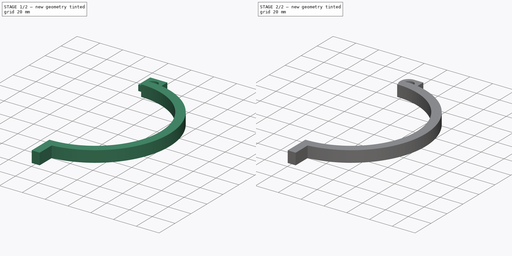
[diagram: build sequence overview — one tinted view per stage of 2, left to right]
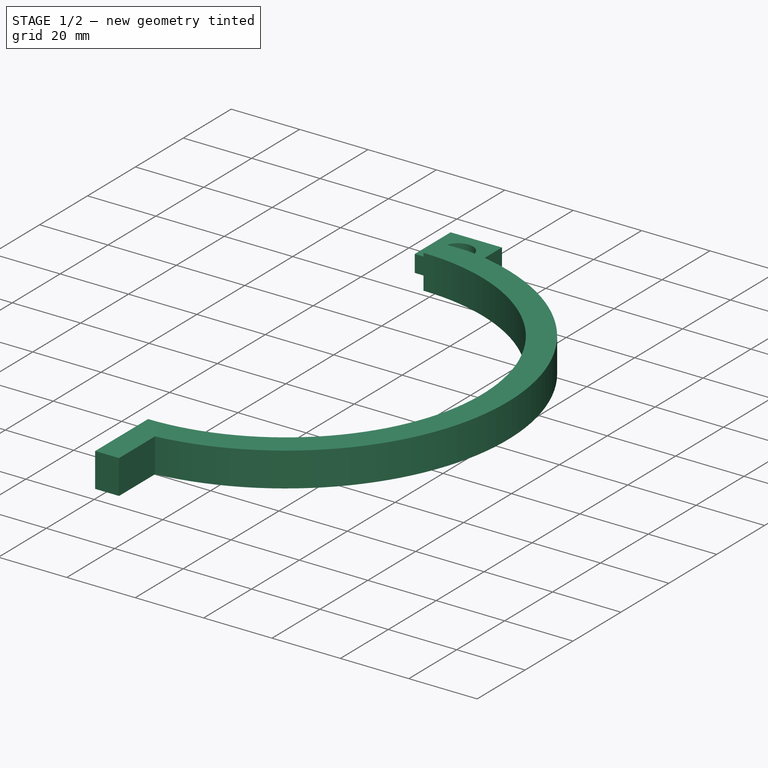
[diagram: stage 1 of 2 — iso view after this stage's code; geometry added in this stage tinted green]
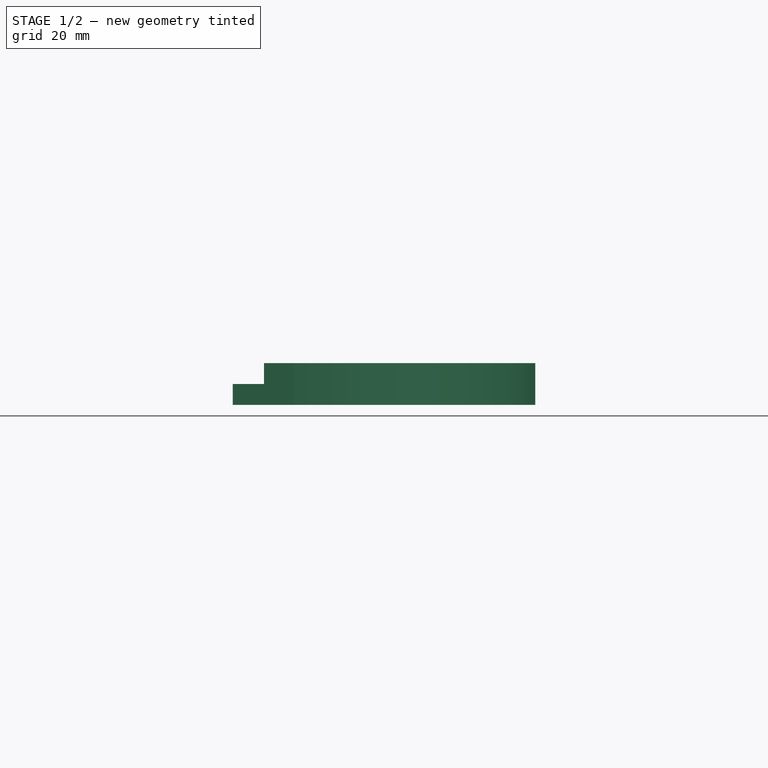
[diagram: stage 1 of 2 — front view after this stage's code; geometry added in this stage tinted green]
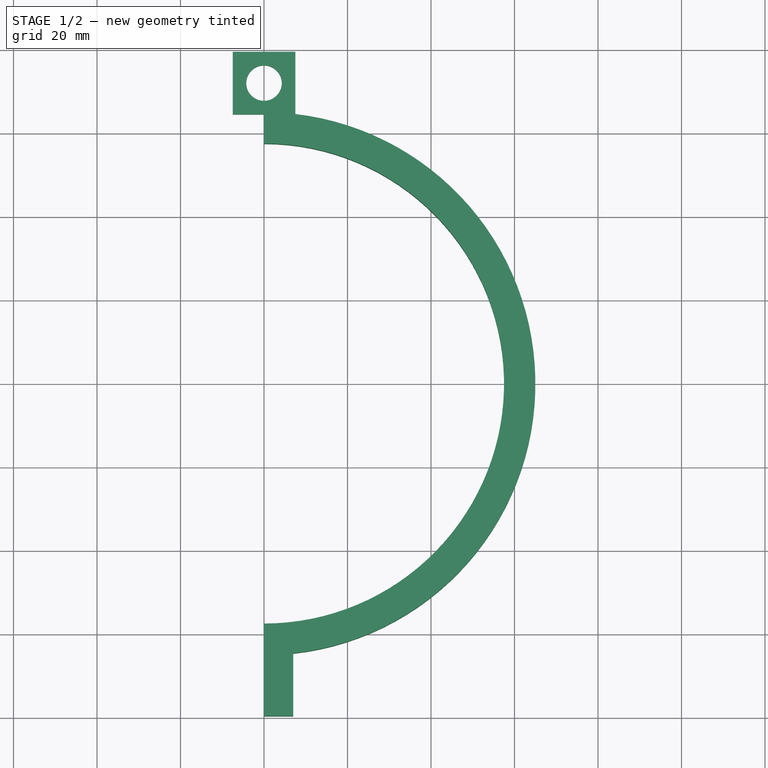
[diagram: stage 1 of 2 — top view after this stage's code; geometry added in this stage tinted green]
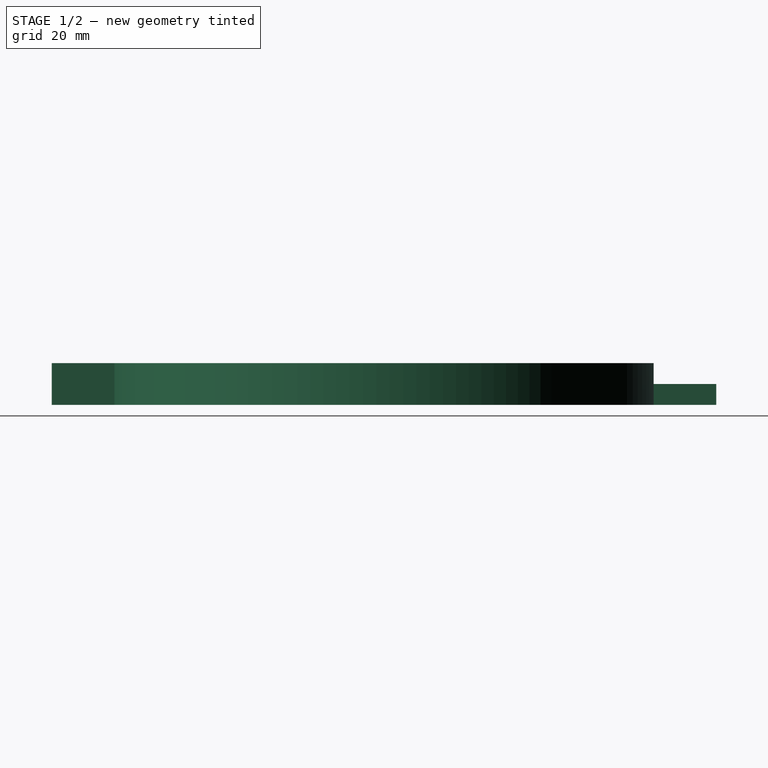
[diagram: stage 1 of 2 — right view after this stage's code; geometry added in this stage tinted green]
FCSTD DOCUMENT  (FreeCAD 1.0R39109 (Git))
Label: close_winds1.1
License: All rights reserved
LicenseURL: https://en.wikipedia.org/wiki/All_rights_reserved
objects: Sketcher::SketchObject×2, PartDesign::Pad×1, PartDesign::Pocket×1, PartDesign::Fillet×1, PartDesign::Body×1
note: 14 computed .brp shape members not serialized (recipe doc carries the construction recipe); baked Part::Feature solids carry a one-line shape summary decoded from their .brp

FEATURE [Sketcher::SketchObject] Sketch
  ArcFitTolerance = 1e-06
  AttachmentSupport = -> [XY_Plane]
  FullyConstrained = true
  MakeInternals = false
  MapMode = 5
  sketch-geometry (11):
    g0: ArcOfCircle CenterX=0 CenterY=0 CenterZ=0 NormalX=0 NormalY=0 NormalZ=1 AngleXU=0 Radius=57.5 StartAngle=4.71239 EndAngle=7.85398
    g1: ArcOfCircle CenterX=0 CenterY=0 CenterZ=0 NormalX=0 NormalY=0 NormalZ=1 AngleXU=0 Radius=65 StartAngle=4.82029 EndAngle=7.73834
    g2: LineSegment StartX=7.5 StartY=64.5659 StartZ=0 EndX=7.5 EndY=79.5659 EndZ=0
    g3: LineSegment StartX=7.5 StartY=79.5659 StartZ=0 EndX=-7.5 EndY=79.5659 EndZ=0
    g4: Circle CenterX=0 CenterY=72.0659 CenterZ=0 NormalX=0 NormalY=0 NormalZ=1 AngleXU=0 Radius=4.25
    g5: LineSegment StartX=-7.5 StartY=79.5659 StartZ=0 EndX=-7.5 EndY=64.5659 EndZ=0
    g6: LineSegment StartX=-7.5 StartY=64.5659 StartZ=0 EndX=0 EndY=64.5659 EndZ=0
    g7: LineSegment StartX=0 StartY=64.5659 StartZ=0 EndX=0 EndY=57.5 EndZ=0
    g8: LineSegment StartX=7 StartY=-64.622 StartZ=0 EndX=7 EndY=-79.622 EndZ=0
    g9: LineSegment StartX=7 StartY=-79.622 StartZ=0 EndX=0 EndY=-79.622 EndZ=0
    g10: LineSegment StartX=0 StartY=-79.622 StartZ=0 EndX=-1.06e-14 EndY=-57.5 EndZ=0
  constraints (33):
    c: Coincident(g0,g-1)
    c: PointOnObject(g0,g-2)
    c: PointOnObject(g0,g-2)
    c: Radius(g0) = 57.5
    c: Coincident(g1,g0)
    c: Radius(g1) = 65
    c: Coincident(g2,g1)
    c: Vertical(g2)
    c: Coincident(g3,g2)
    c: Horizontal(g3)
    c: Diameter(g4) = 8.5
    c: Equal(g2,g3)
    c: DistanceY(g2,g2) = 15
    c: DistanceY(g4,g2) = 7.5
    c: Coincident(g3,g5)
    c: Vertical(g5)
    c: DistanceX(g3,g4) = 7.5
    c: Vertical(g4,g0)
    c: Coincident(g5,g6)
    c: PointOnObject(g6,g-2)
    c: Horizontal(g6)
    c: Coincident(g6,g7)
    c: Coincident(g7,g0)
    c: Equal(g2,g5)
    c: Vertical(g8)
    c: Coincident(g8,g9)
    c: PointOnObject(g9,g-2)
    c: Coincident(g1,g8)
    c: Coincident(g10,g9)
    c: Coincident(g10,g0)
    c: Horizontal(g9)
    c: DistanceY(g8,g8) = 15
    c: DistanceX(g9,g9) = 7
FEATURE [PartDesign::Pad] Pad
  Direction = (0,0,1)
  Length = 10
  Length2 = 10
  Profile = -> Sketch
  ReferenceAxis = -> Sketch [N_Axis]
  Refine = true
  Suppressed = false
  Type = 0
FEATURE [Sketcher::SketchObject] Sketch001
  ArcFitTolerance = 1e-06
  AttachmentSupport = -> [Pad]
  FullyConstrained = true
  MakeInternals = false
  MapMode = 5
  Placement = pos=(0,0,10) rot=(0,0,1;0rad)
  sketch-geometry (4):
    g0: LineSegment StartX=-8.5 StartY=80.5 StartZ=0 EndX=-8.5 EndY=64.5 EndZ=0
    g1: LineSegment StartX=-8.5 StartY=64.5 StartZ=0 EndX=7.5 EndY=64.5 EndZ=0
    g2: LineSegment StartX=7.5 StartY=64.5 StartZ=0 EndX=7.5 EndY=80.5 EndZ=0
    g3: LineSegment StartX=7.5 StartY=80.5 StartZ=0 EndX=-8.5 EndY=80.5 EndZ=0
  constraints (12):
    c: Coincident(g0,g1)
    c: Coincident(g1,g2)
    c: Coincident(g2,g3)
    c: Coincident(g3,g0)
    c: Vertical(g0)
    c: Vertical(g2)
    c: Horizontal(g1)
    c: Horizontal(g3)
    c: DistanceY(g-1,g1) = 64.5
    c: DistanceY(g2,g2) = 16
    c: Equal(g3,g2)
    c: DistanceX(g-1,g1) = 7.5
FEATURE [PartDesign::Pocket] Pocket
  BaseFeature = -> Pad
  Direction = (0,0,-1)
  Length = 5
  Length2 = 5
  Profile = -> Sketch001
  ReferenceAxis = -> Sketch001 [N_Axis]
  Refine = true
  Suppressed = false
  Type = 0
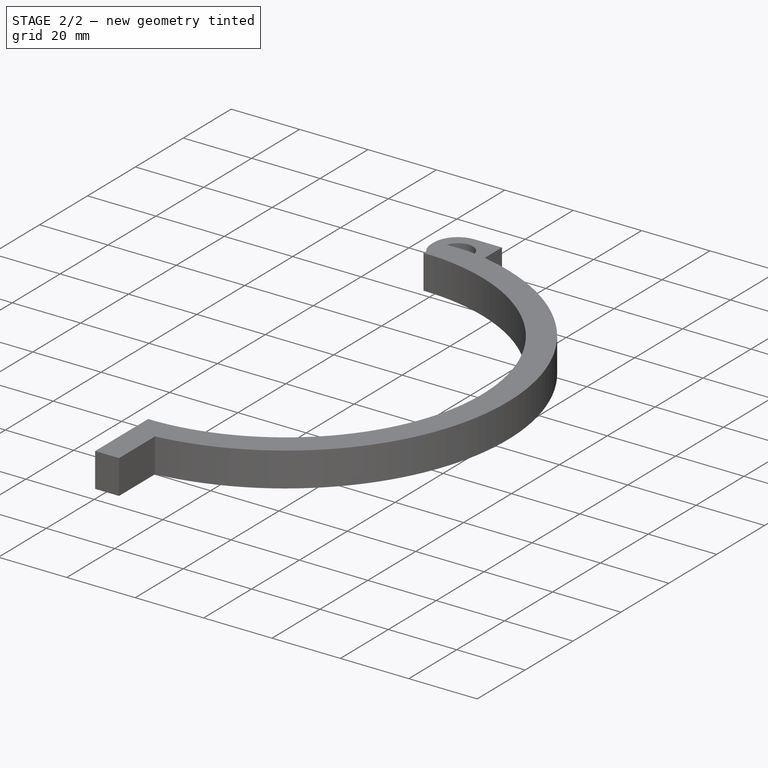
[diagram: stage 2 of 2 — iso view after this stage's code; geometry added in this stage tinted green]
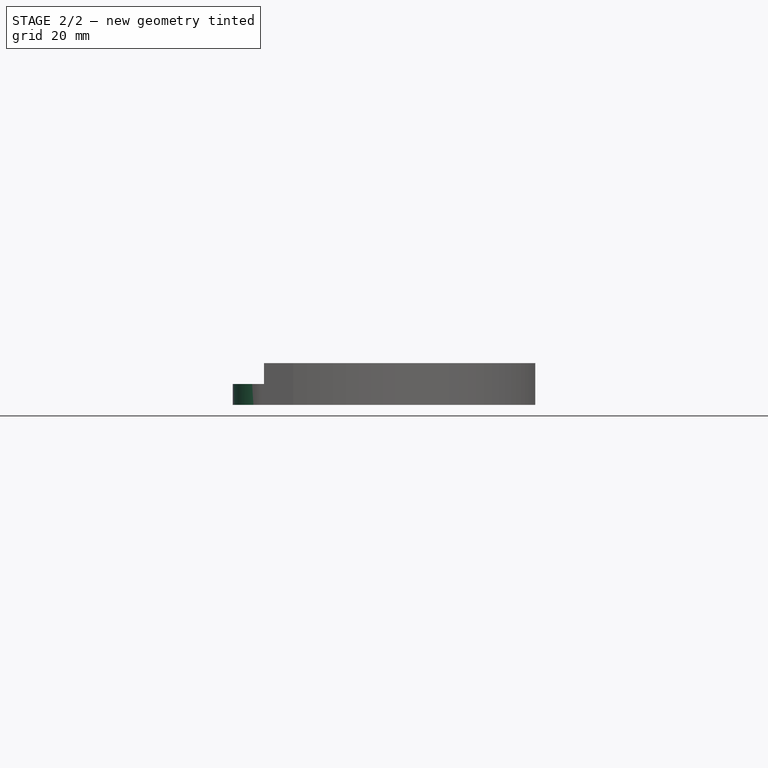
[diagram: stage 2 of 2 — front view after this stage's code; geometry added in this stage tinted green]
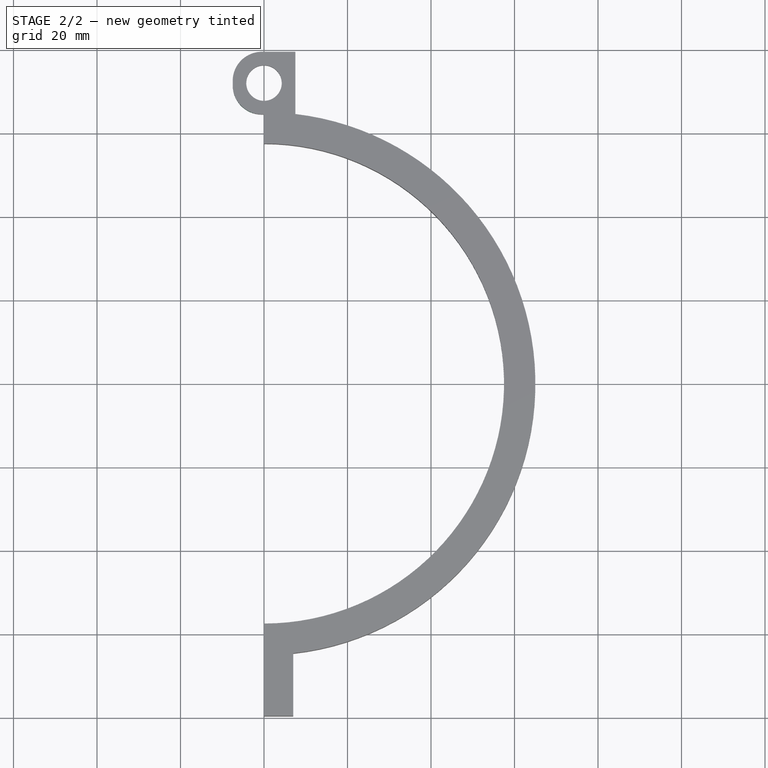
[diagram: stage 2 of 2 — top view after this stage's code; geometry added in this stage tinted green]
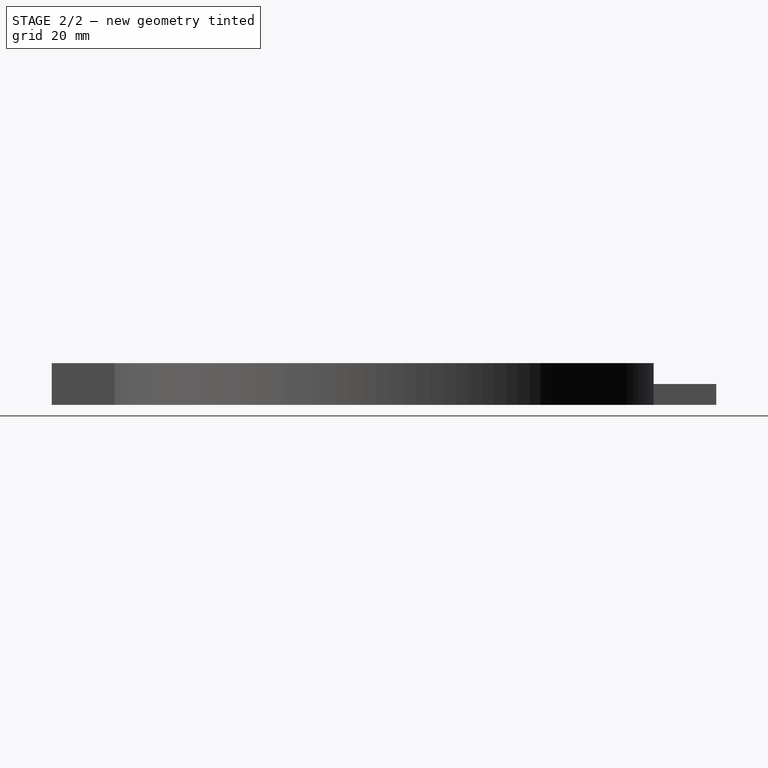
[diagram: stage 2 of 2 — right view after this stage's code; geometry added in this stage tinted green]
FEATURE [PartDesign::Fillet] Fillet
  Base = -> Pocket [Edge35,Edge37]
  BaseFeature = -> Pocket
  Radius = 7
  Refine = true
  SupportTransform = false
  Suppressed = false
  UseAllEdges = false
FEATURE [PartDesign::Body] Body
  AllowCompound = false
  Group = -> [Sketch,Pad,Sketch001,Pocket,Fillet]
  Origin = -> Origin
  Tip = -> Fillet
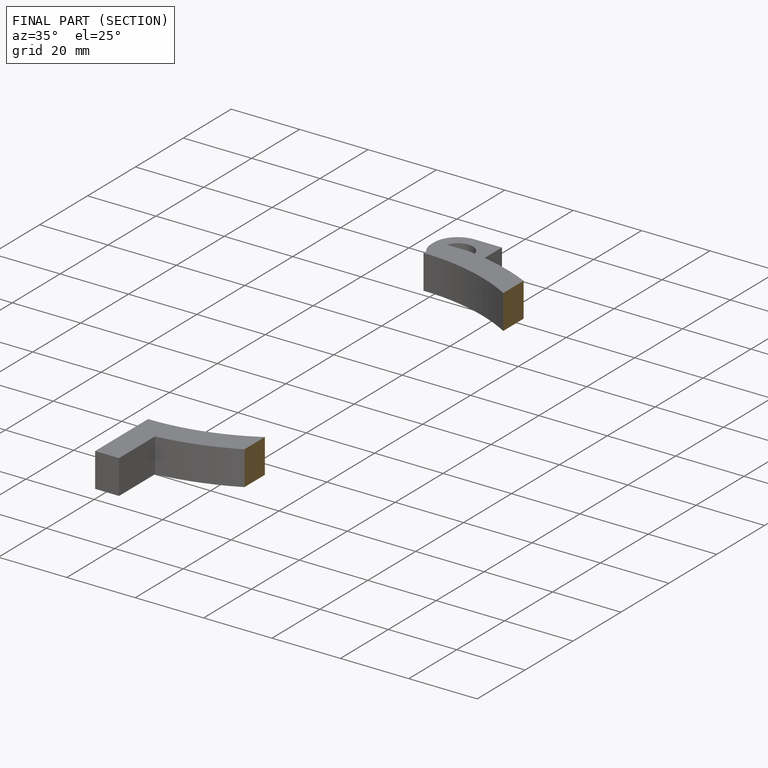
[diagram: finished part — half-section view (interior)]
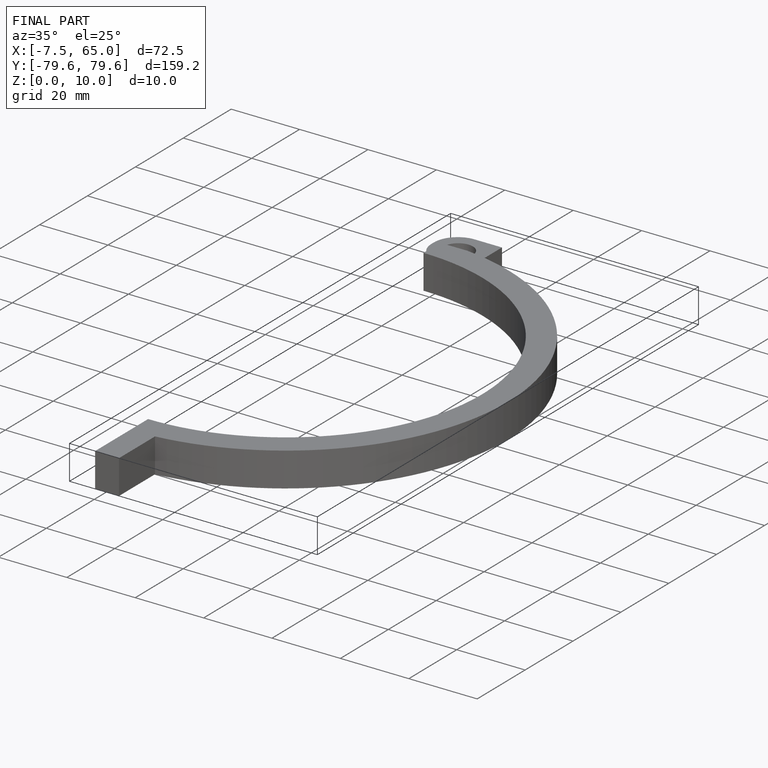
[diagram: finished part — iso view with bounding-box wireframe]
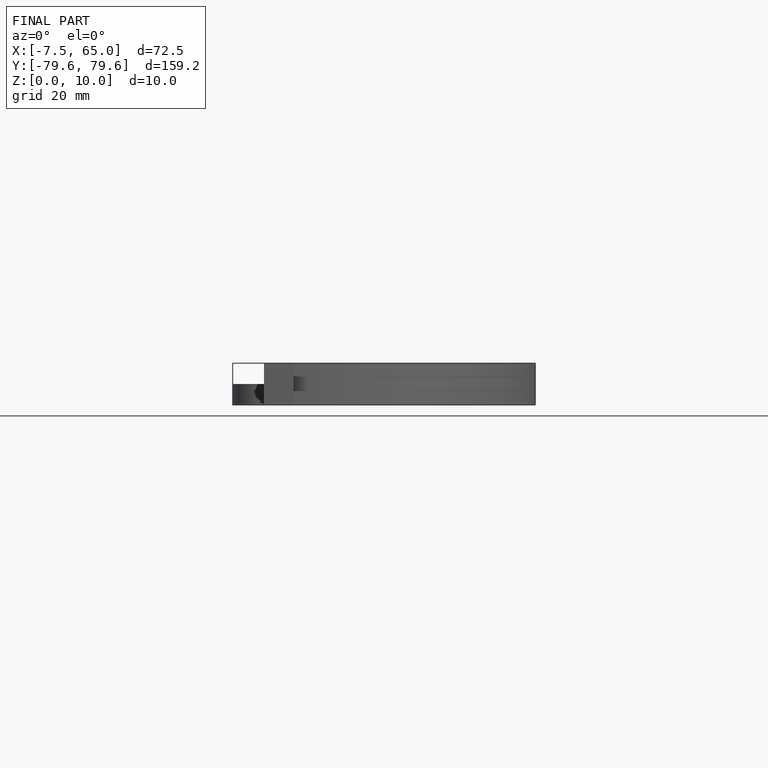
[diagram: finished part — front view with bounding-box wireframe]
